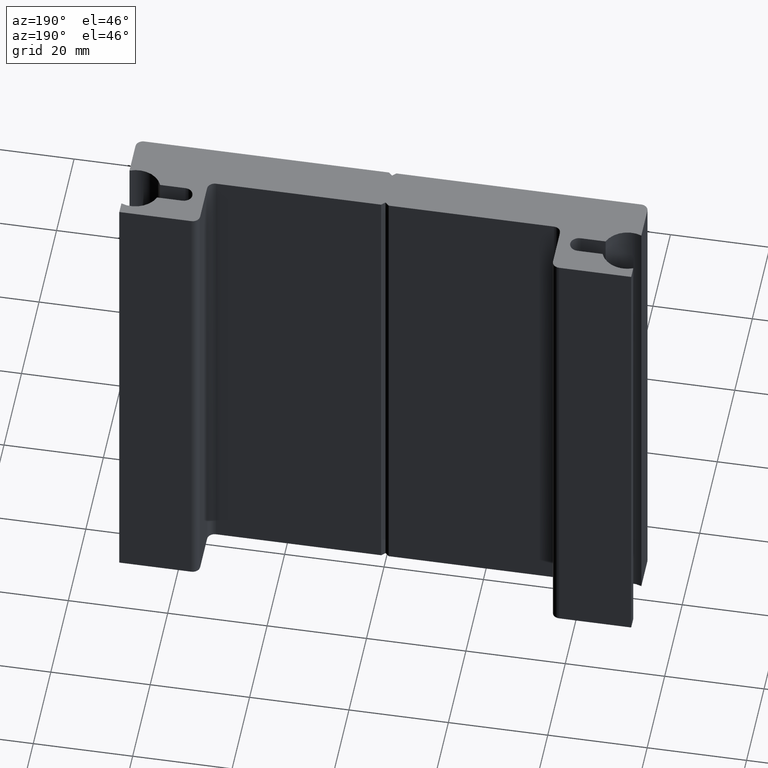
[diagram: clean part render]
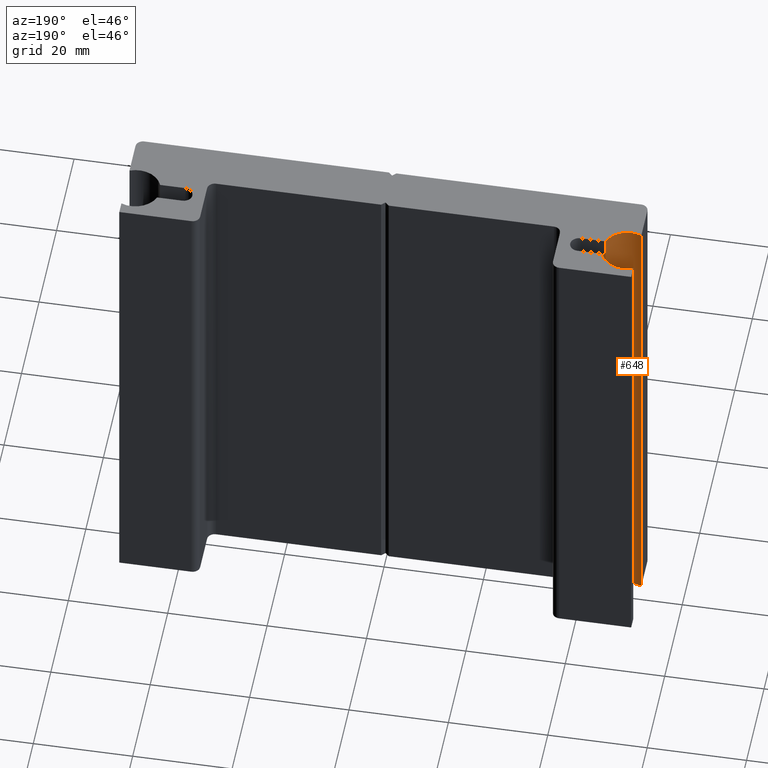
[diagram: same view with one face highlighted and labeled with its STEP entity id]
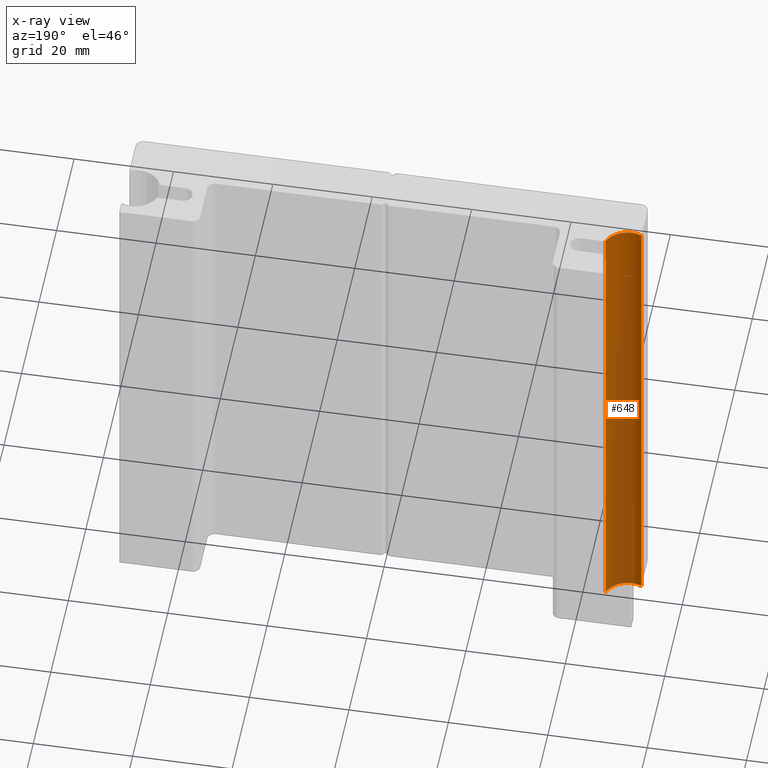
[diagram: x-ray of the same camera — body ghosted, the highlighted face saturated]
A machine part, auxiliary view. The second image highlights one B-rep face of the part: STEP entity #648.
The next image is the same camera in x-ray: the body ghosted, the highlighted face saturated — about 43% of this face is hidden behind the body in this view.
In plain terms, the highlighted cylindrical surface (edge-blend (fillet) strip) has radius 5 mm, axis along (0, 0, -1).
Its self-contained STEP definition (entity closure, byte-faithful):
#25=CIRCLE('',#719,5.);
#26=CIRCLE('',#720,5.);
#46=CYLINDRICAL_SURFACE('',#718,5.);
#62=FACE_OUTER_BOUND('',#96,.T.);
#96=EDGE_LOOP('',(#455,#456,#457,#458));
#128=LINE('',#974,#200);
#140=LINE('',#1012,#212);
#200=VECTOR('',#777,10.);
#212=VECTOR('',#815,10.);
#271=VERTEX_POINT('',#970);
#273=VERTEX_POINT('',#973);
#285=VERTEX_POINT('',#1009);
#286=VERTEX_POINT('',#1011);
#336=EDGE_CURVE('',#273,#271,#128,.T.);
#354=EDGE_CURVE('',#285,#271,#25,.T.);
#355=EDGE_CURVE('',#286,#285,#140,.T.);
#356=EDGE_CURVE('',#273,#286,#26,.T.);
#455=ORIENTED_EDGE('',*,*,#336,.T.);
#456=ORIENTED_EDGE('',*,*,#354,.F.);
#457=ORIENTED_EDGE('',*,*,#355,.F.);
#458=ORIENTED_EDGE('',*,*,#356,.F.);
#648=ADVANCED_FACE('',(#62),#46,.F.);
#718=AXIS2_PLACEMENT_3D('',#1008,#811,#812);
#719=AXIS2_PLACEMENT_3D('',#1010,#813,#814);
#720=AXIS2_PLACEMENT_3D('',#1013,#816,#817);
#777=DIRECTION('',(0.,0.,-1.));
#811=DIRECTION('center_axis',(0.,0.,-1.));
#812=DIRECTION('ref_axis',(-1.,0.,0.));
#813=DIRECTION('center_axis',(0.,0.,1.));
#814=DIRECTION('ref_axis',(-1.,0.,0.));
#815=DIRECTION('',(0.,0.,-1.));
#816=DIRECTION('center_axis',(0.,0.,-1.));
#817=DIRECTION('ref_axis',(-1.,0.,0.));
#970=CARTESIAN_POINT('',(-44.8162515012012,1.25,0.));
#973=CARTESIAN_POINT('',(-44.8162515012012,1.25,100.));
#974=CARTESIAN_POINT('',(-44.8162515012012,1.25,100.));
#1008=CARTESIAN_POINT('Origin',(-49.5,3.,100.));
#1009=CARTESIAN_POINT('',(-51.5,-1.58257569495584,0.));
#1010=CARTESIAN_POINT('Origin',(-49.5,3.,0.));
#1011=CARTESIAN_POINT('',(-51.5,-1.58257569495584,100.));
#1012=CARTESIAN_POINT('',(-51.5,-1.58257569495584,100.));
#1013=CARTESIAN_POINT('Origin',(-49.5,3.,100.));